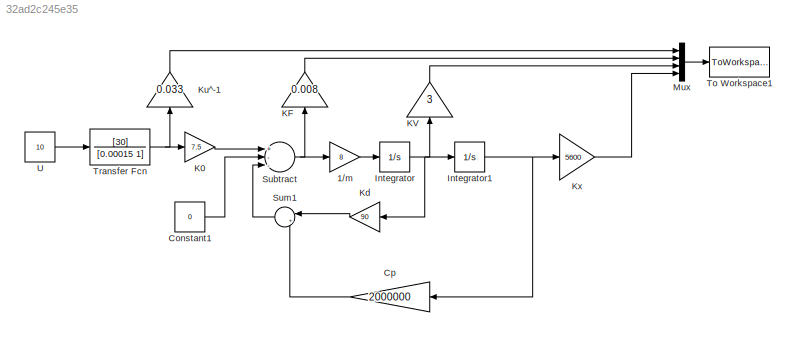
MODEL slx_32ad2c245e35
KIND model
BLOCK [Gain] 1//m
  Gain = 8
  OutDataTypeStr = Inherit: Inherit via internal rule
  ParamDataTypeStr = Inherit: Inherit via internal rule
  SaturateOnIntegerOverflow = off
BLOCK [Constant] Constant1
  Value = 0
BLOCK [Gain] Cp
  Gain = 2000000
  OutDataTypeStr = Inherit: Inherit via internal rule
  ParamDataTypeStr = Inherit: Inherit via internal rule
  SaturateOnIntegerOverflow = off
BLOCK [Integrator] Integrator
  Ports = [1, 1]
BLOCK [Integrator] Integrator1
  Ports = [1, 1]
BLOCK [Gain] K0
  Gain = 7.5
  OutDataTypeStr = Inherit: Inherit via internal rule
  ParamDataTypeStr = Inherit: Inherit via internal rule
  SaturateOnIntegerOverflow = off
BLOCK [Gain] KF
  Gain = 0.008
  OutDataTypeStr = Inherit: Inherit via internal rule
  ParamDataTypeStr = Inherit: Inherit via internal rule
  SaturateOnIntegerOverflow = off
BLOCK [Gain] KV
  Gain = 3
  OutDataTypeStr = Inherit: Inherit via internal rule
  ParamDataTypeStr = Inherit: Inherit via internal rule
  SaturateOnIntegerOverflow = off
BLOCK [Gain] Kd
  Gain = 90
  OutDataTypeStr = Inherit: Inherit via internal rule
  ParamDataTypeStr = Inherit: Inherit via internal rule
  SaturateOnIntegerOverflow = off
BLOCK [Gain] Ku^-1
  Gain = 0.033
  OutDataTypeStr = Inherit: Inherit via internal rule
  ParamDataTypeStr = Inherit: Inherit via internal rule
  SaturateOnIntegerOverflow = off
BLOCK [Gain] Kx
  Gain = 5600
  OutDataTypeStr = Inherit: Inherit via internal rule
  ParamDataTypeStr = Inherit: Inherit via internal rule
  SaturateOnIntegerOverflow = off
BLOCK [Mux] Mux
  DisplayOption = bar
  Ports = [4, 1]
BLOCK [Sum] Subtract
  InputSameDT = off
  Inputs = +--
  OutDataTypeStr = Inherit: Inherit via internal rule
  Ports = [3, 1]
  SaturateOnIntegerOverflow = off
BLOCK [Sum] Sum1
  IconShape = round
  InputSameDT = off
  Inputs = |++
  OutDataTypeStr = Inherit: Inherit via internal rule
  Ports = [2, 1]
  SaturateOnIntegerOverflow = off
BLOCK [ToWorkspace] To Workspace1
  MaxDataPoints = inf
  Ports = [1]
  SampleTime = -1
  SaveFormat = Timeseries
  VariableName = simout1
BLOCK [TransferFcn] Transfer Fcn
  Denominator = [0.00015 1]
  Numerator = [30]
BLOCK [Constant] U
  Value = 10
LINE 1//m:1 -> Integrator:1
LINE Constant1:1 -> Subtract:2
LINE Cp:1 -> Sum1:2
NET Integrator1:1 -> Cp:1, Kx:1
NET Integrator:1 -> Integrator1:1, KV:1, Kd:1
LINE K0:1 -> Subtract:1
LINE KF:1 -> Mux:2
LINE KV:1 -> Mux:3
LINE Kd:1 -> Sum1:1
LINE Ku^-1:1 -> Mux:1
LINE Kx:1 -> Mux:4
LINE Mux:1 -> To Workspace1:1
NET Subtract:1 -> 1//m:1, KF:1
LINE Sum1:1 -> Subtract:3
NET Transfer Fcn:1 -> K0:1, Ku^-1:1
LINE U:1 -> Transfer Fcn:1
note: NET lines group one-source signal fan-out (src -> all destinations, sorted); 1:1 wires keep LINE
